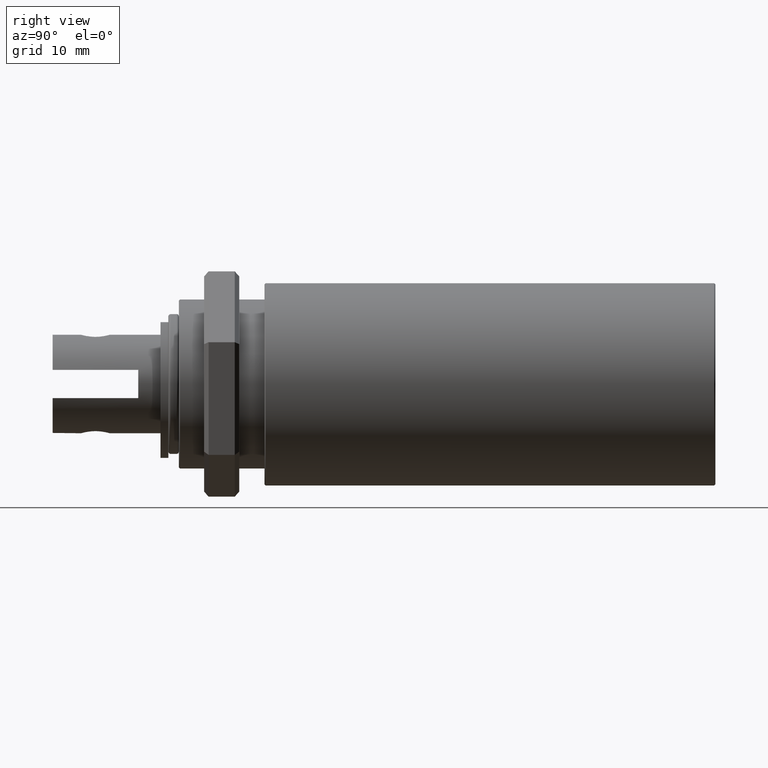
[diagram: clean part render]
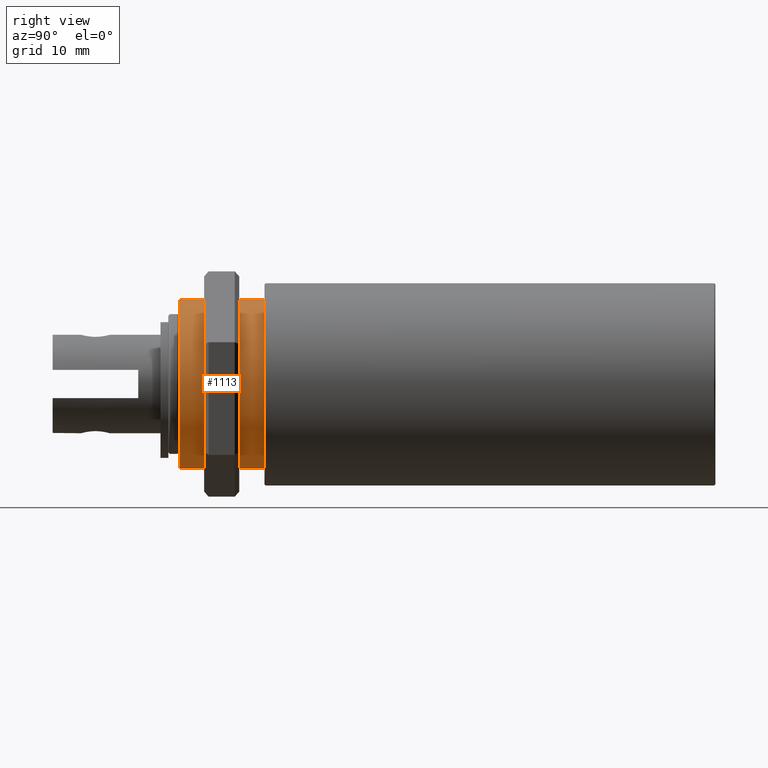
[diagram: same view with one face highlighted and labeled with its STEP entity id]
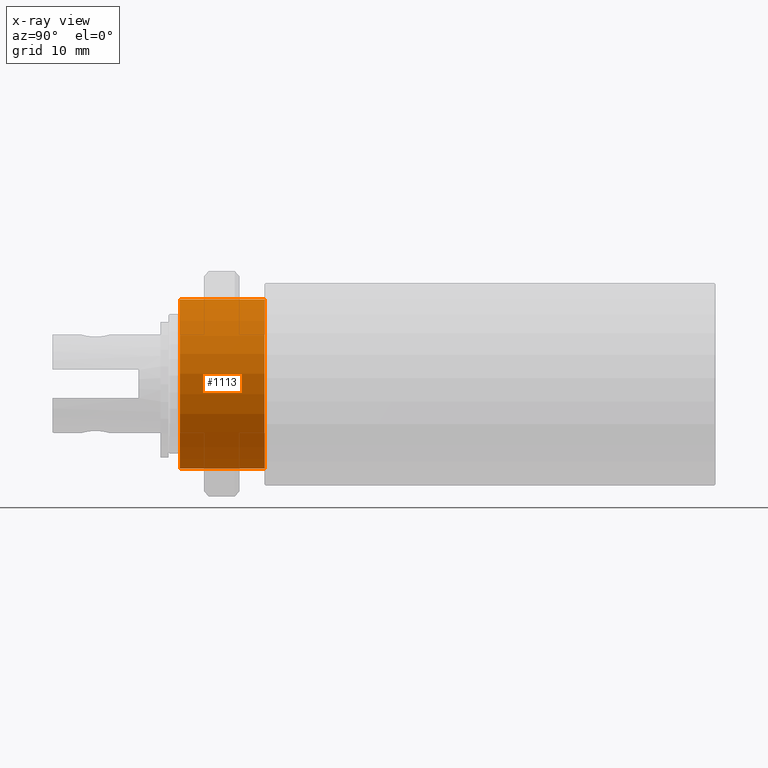
[diagram: x-ray of the same camera — body ghosted, the highlighted face saturated]
A machine part, right view. The second image highlights one B-rep face of the part: STEP entity #1113.
The next image is the same camera in x-ray: the body ghosted, the highlighted face saturated — about 0% of this face is hidden behind the body in this view.
In plain terms, the highlighted cylindrical surface (bore or boss wall) has radius 9.525 mm, axis along (-0, -1, 0).
Its self-contained STEP definition (entity closure, byte-faithful):
#108=CIRCLE('',#1301,0.009525);
#109=CIRCLE('',#1302,0.009525);
#134=CYLINDRICAL_SURFACE('',#1300,0.009525);
#393=ORIENTED_EDGE('',*,*,#540,.T.);
#394=ORIENTED_EDGE('',*,*,#541,.T.);
#540=EDGE_CURVE('',#637,#637,#108,.T.);
#541=EDGE_CURVE('',#638,#638,#109,.T.);
#637=VERTEX_POINT('',#1972);
#638=VERTEX_POINT('',#1974);
#889=EDGE_LOOP('',(#393));
#890=EDGE_LOOP('',(#394));
#992=FACE_BOUND('',#889,.T.);
#993=FACE_BOUND('',#890,.T.);
#1113=ADVANCED_FACE('',(#992,#993),#134,.T.);
#1300=AXIS2_PLACEMENT_3D('',#1970,#1629,#1630);
#1301=AXIS2_PLACEMENT_3D('',#1971,#1631,#1632);
#1302=AXIS2_PLACEMENT_3D('',#1973,#1633,#1634);
#1629=DIRECTION('',(0.,0.,-1.));
#1630=DIRECTION('',(-1.,0.,0.));
#1631=DIRECTION('',(0.,0.,1.));
#1632=DIRECTION('',(1.,0.,0.));
#1633=DIRECTION('',(0.,0.,-1.));
#1634=DIRECTION('',(-1.,0.,0.));
#1970=CARTESIAN_POINT('',(0.,0.,0.0208083543884633));
#1971=CARTESIAN_POINT('',(0.,0.,0.000127000000000002));
#1972=CARTESIAN_POINT('',(0.009525,0.,0.000127000000000002));
#1973=CARTESIAN_POINT('',(0.,0.,0.009652));
#1974=CARTESIAN_POINT('',(-0.009525,0.,0.009652));